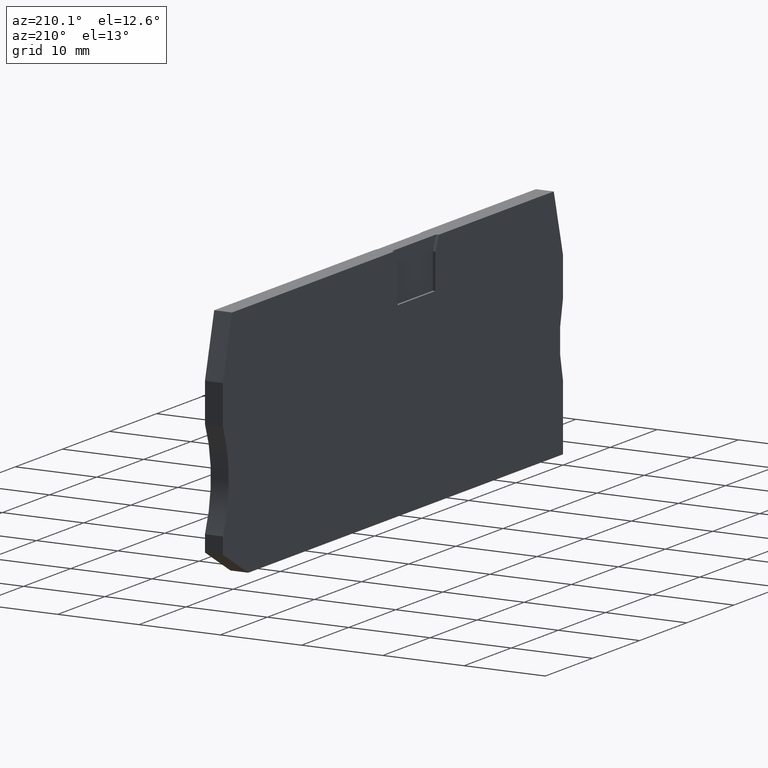
[diagram: clean part render]
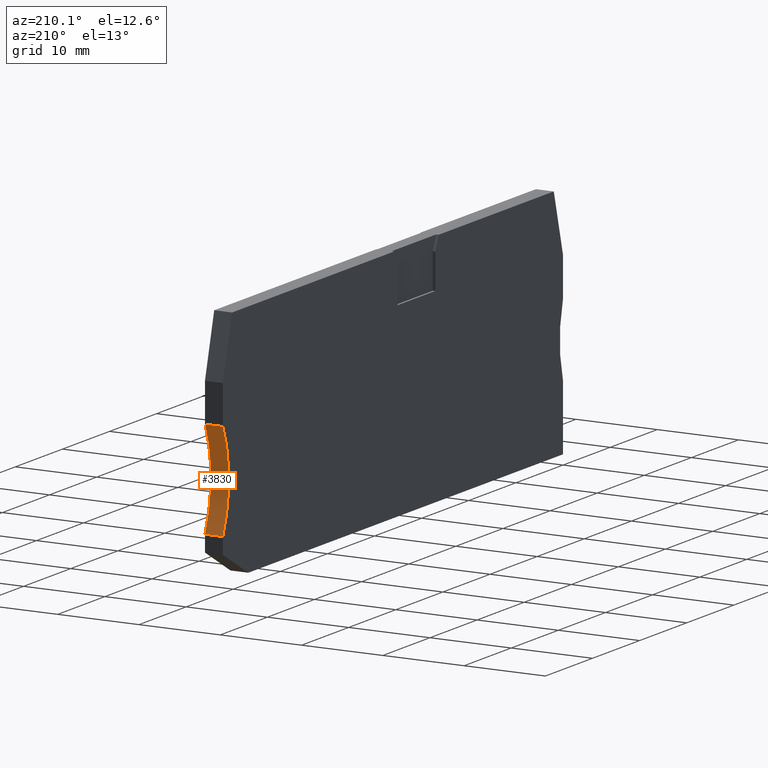
[diagram: same view with one face highlighted and labeled with its STEP entity id]
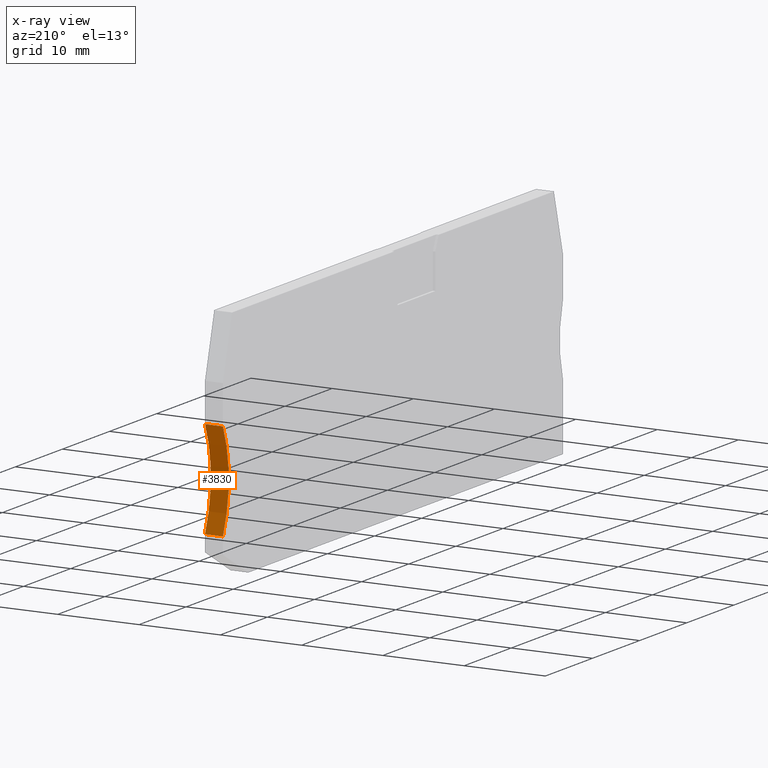
[diagram: x-ray of the same camera — body ghosted, the highlighted face saturated]
A machine part, auxiliary view. The second image highlights one B-rep face of the part: STEP entity #3830.
The next image is the same camera in x-ray: the body ghosted, the highlighted face saturated — about 0% of this face is hidden behind the body in this view.
In plain terms, the highlighted cylindrical surface (partial cylindrical patch) has radius 15 mm, axis along (1, 0, -0).
Its self-contained STEP definition (entity closure, byte-faithful):
#570=CARTESIAN_POINT('',(38.0321672216756,-21.2000000000027,55.37));
#580=VERTEX_POINT('',#570);
#630=CARTESIAN_POINT('',(51.7798943065431,-27.2000000000027,55.37));
#640=DIRECTION('',(0.,0.,1.));
#650=DIRECTION('',(1.,0.,0.));
#660=AXIS2_PLACEMENT_3D('',#630,#640,#650);
#670=CIRCLE('',#660,15.);
#680=CARTESIAN_POINT('',(38.0321672216756,-33.2000000000027,55.37));
#690=VERTEX_POINT('',#680);
#700=EDGE_CURVE('',#580,#690,#670,.T.);
#3520=CARTESIAN_POINT('',(51.7798943065431,-27.2000000000027,55.37));
#3530=DIRECTION('',(0.,0.,1.));
#3540=DIRECTION('',(1.,0.,0.));
#3550=AXIS2_PLACEMENT_3D('',#3520,#3530,#3540);
#3560=CYLINDRICAL_SURFACE('',#3550,15.);
#3570=CARTESIAN_POINT('',(38.0321672216756,-21.2000000000027,55.37));
#3580=DIRECTION('',(0.,0.,1.));
#3590=VECTOR('',#3580,1.);
#3600=LINE('',#3570,#3590);
#3610=CARTESIAN_POINT('',(38.0321672216756,-21.2000000000027,53.17));
#3620=VERTEX_POINT('',#3610);
#3630=EDGE_CURVE('',#3620,#580,#3600,.T.);
#3640=ORIENTED_EDGE('',*,*,#3630,.T.);
#3650=CARTESIAN_POINT('',(51.7798943065431,-27.2000000000027,53.17));
#3660=DIRECTION('',(0.,0.,1.));
#3670=DIRECTION('',(1.,0.,0.));
#3680=AXIS2_PLACEMENT_3D('',#3650,#3660,#3670);
#3690=CIRCLE('',#3680,15.);
#3700=CARTESIAN_POINT('',(38.0321672216756,-33.2000000000027,53.17));
#3710=VERTEX_POINT('',#3700);
#3720=EDGE_CURVE('',#3620,#3710,#3690,.T.);
#3730=ORIENTED_EDGE('',*,*,#3720,.F.);
#3740=CARTESIAN_POINT('',(38.0321672216756,-33.2000000000027,55.37));
#3750=DIRECTION('',(0.,0.,1.));
#3760=VECTOR('',#3750,1.);
#3770=LINE('',#3740,#3760);
#3780=EDGE_CURVE('',#3710,#690,#3770,.T.);
#3790=ORIENTED_EDGE('',*,*,#3780,.F.);
#3800=ORIENTED_EDGE('',*,*,#700,.T.);
#3810=EDGE_LOOP('',(#3800,#3790,#3730,#3640));
#3820=FACE_OUTER_BOUND('',#3810,.T.);
#3830=ADVANCED_FACE('',(#3820),#3560,.F.);